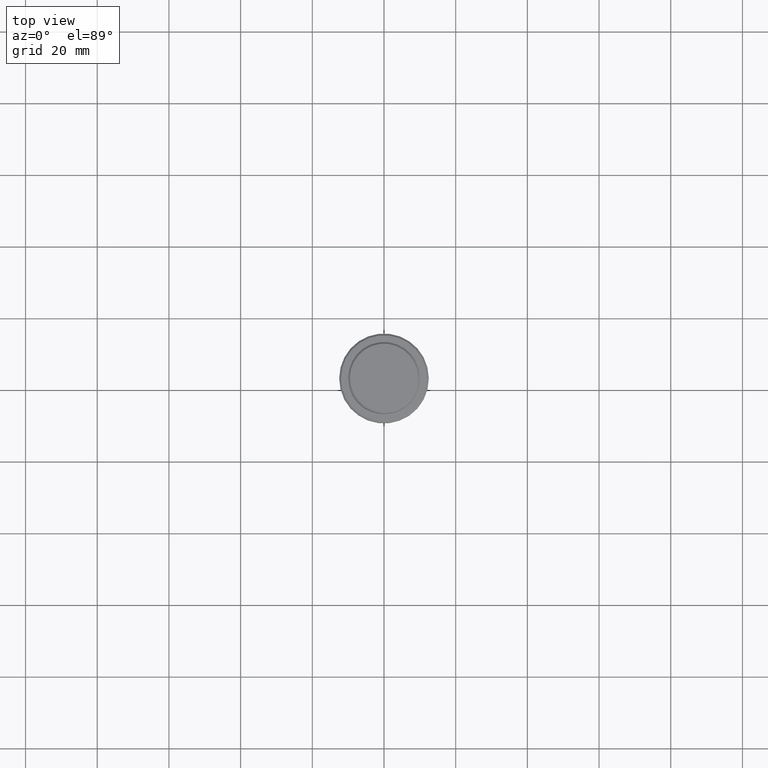
[diagram: clean part render]
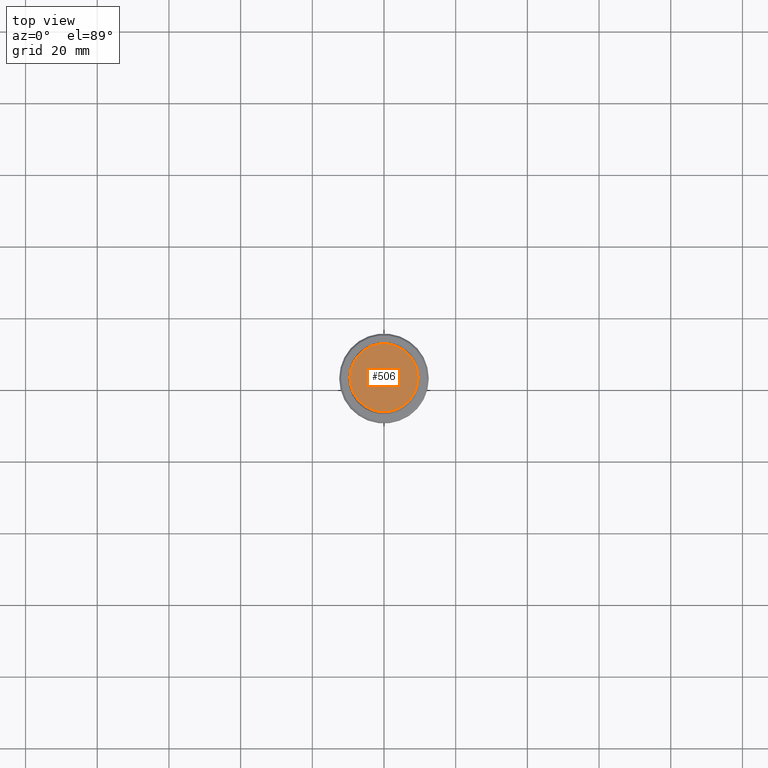
[diagram: same view with one face highlighted and labeled with its STEP entity id]
A machine part, top view. The second image highlights one B-rep face of the part: STEP entity #506.
In plain terms, the highlighted planar face has unit normal (0, -0, 1).
Its self-contained STEP definition (entity closure, byte-faithful):
#92 = DIRECTION ( 'NONE',  ( -0.000000000000000000, -0.000000000000000000, 1.000000000000000000 ) ) ;
#201 = EDGE_LOOP ( 'NONE', ( #237, #214 ) ) ;
#214 = ORIENTED_EDGE ( 'NONE', *, *, #1097, .T. ) ;
#237 = ORIENTED_EDGE ( 'NONE', *, *, #523, .T. ) ;
#317 = CARTESIAN_POINT ( 'NONE',  ( 9.500000000000008882, 1.194030629168669864E-15, 0.000000000000000000 ) ) ;
#414 = CIRCLE ( 'NONE', #1344, 9.500000000000008882 ) ;
#429 = DIRECTION ( 'NONE',  ( 0.000000000000000000, -0.000000000000000000, 1.000000000000000000 ) ) ;
#506 = ADVANCED_FACE ( 'NONE', ( #737 ), #848, .T. ) ;
#523 = EDGE_CURVE ( 'NONE', #1340, #545, #414, .T. ) ;
#532 = DIRECTION ( 'NONE',  ( 1.000000000000000000, 0.000000000000000000, 0.000000000000000000 ) ) ;
#545 = VERTEX_POINT ( 'NONE', #317 ) ;
#566 = AXIS2_PLACEMENT_3D ( 'NONE', #733, #429, #532 ) ;
#610 = CARTESIAN_POINT ( 'NONE',  ( -9.500000000000008882, 0.000000000000000000, 0.000000000000000000 ) ) ;
#712 = AXIS2_PLACEMENT_3D ( 'NONE', #1094, #92, #1407 ) ;
#733 = CARTESIAN_POINT ( 'NONE',  ( 0.000000000000000000, 0.000000000000000000, 0.000000000000000000 ) ) ;
#737 = FACE_OUTER_BOUND ( 'NONE', #201, .T. ) ;
#743 = DIRECTION ( 'NONE',  ( 1.000000000000000000, 0.000000000000000000, 0.000000000000000000 ) ) ;
#830 = CIRCLE ( 'NONE', #712, 9.500000000000008882 ) ;
#848 = PLANE ( 'NONE',  #566 ) ;
#1094 = CARTESIAN_POINT ( 'NONE',  ( 0.000000000000000000, 0.000000000000000000, 0.000000000000000000 ) ) ;
#1097 = EDGE_CURVE ( 'NONE', #545, #1340, #830, .T. ) ;
#1340 = VERTEX_POINT ( 'NONE', #610 ) ;
#1344 = AXIS2_PLACEMENT_3D ( 'NONE', #1404, #1390, #743 ) ;
#1390 = DIRECTION ( 'NONE',  ( -0.000000000000000000, -0.000000000000000000, 1.000000000000000000 ) ) ;
#1404 = CARTESIAN_POINT ( 'NONE',  ( 0.000000000000000000, 0.000000000000000000, 0.000000000000000000 ) ) ;
#1407 = DIRECTION ( 'NONE',  ( 1.000000000000000000, 0.000000000000000000, 0.000000000000000000 ) ) ;